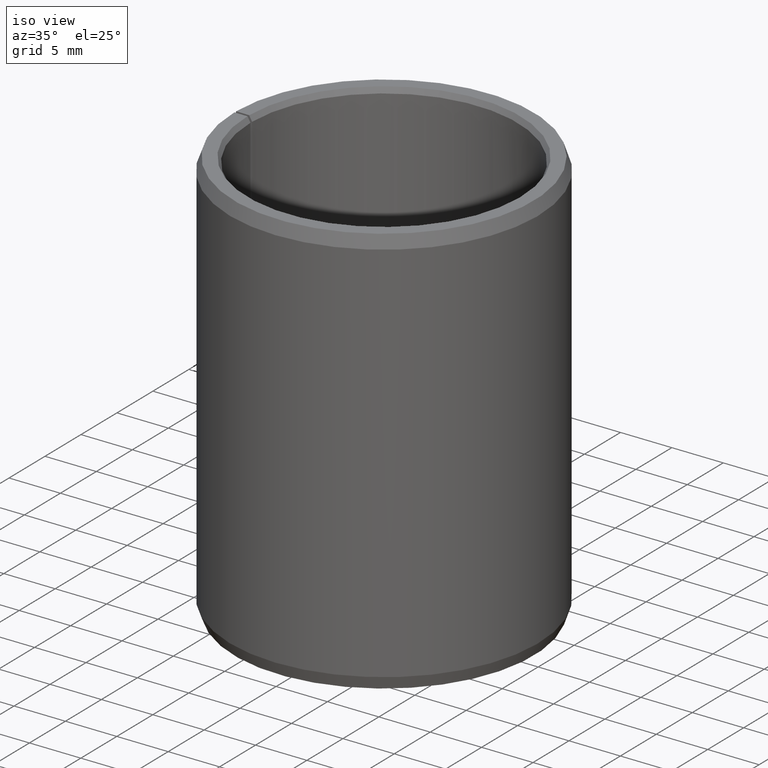
[diagram: clean part render]
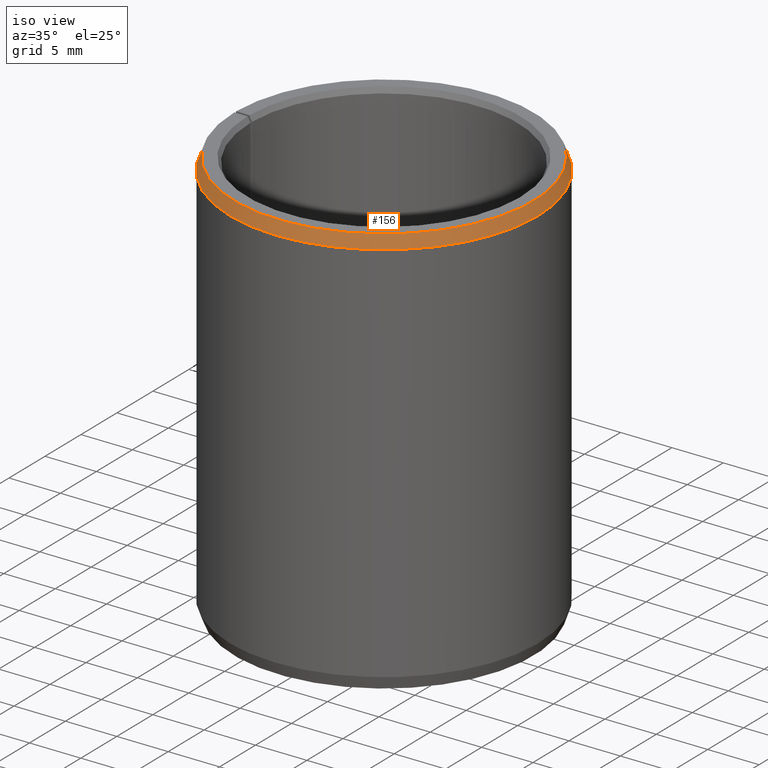
[diagram: same view with one face highlighted and labeled with its STEP entity id]
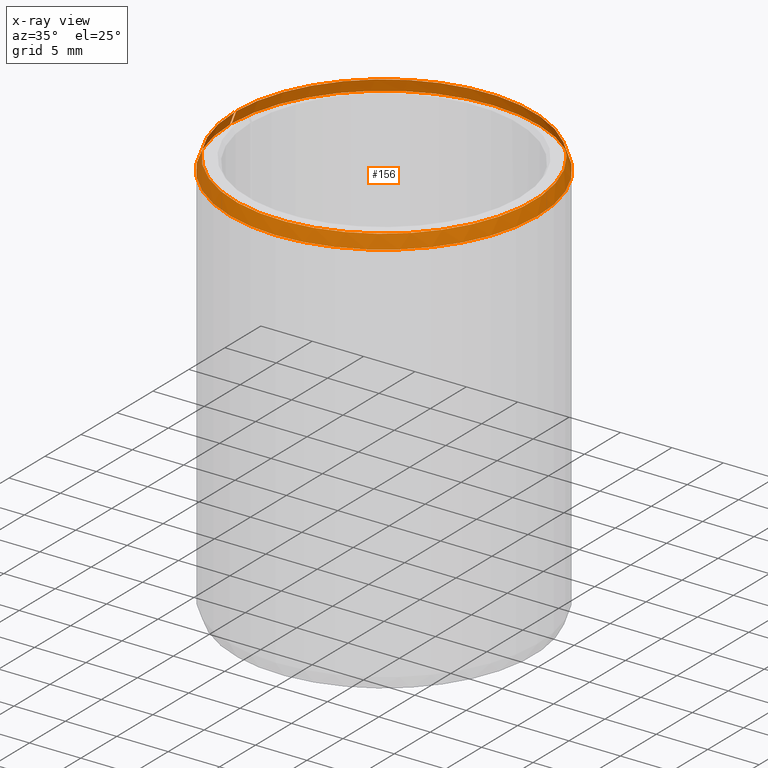
[diagram: x-ray of the same camera — body ghosted, the highlighted face saturated]
A machine part, iso view. The second image highlights one B-rep face of the part: STEP entity #156.
The next image is the same camera in x-ray: the body ghosted, the highlighted face saturated — about 0% of this face is hidden behind the body in this view.
In plain terms, the highlighted conical surface has half-angle 20 deg.
Its self-contained STEP definition (entity closure, byte-faithful):
#156=ADVANCED_FACE('',(#172),#173,.T.);
#172=FACE_OUTER_BOUND('',#198,.T.);
#173=CONICAL_SURFACE('',#199,0.015,0.349065850398866);
#198=EDGE_LOOP('',(#238,#239,#240,#241));
#199=AXIS2_PLACEMENT_3D('',#242,#243,#244);
#238=ORIENTED_EDGE('',*,*,#312,.T.);
#239=ORIENTED_EDGE('',*,*,#313,.F.);
#240=ORIENTED_EDGE('',*,*,#314,.F.);
#241=ORIENTED_EDGE('',*,*,#315,.T.);
#242=CARTESIAN_POINT('',(-8.67361737988404E-018,-6.93889390390723E-018,0.0388));
#243=DIRECTION('',(6.12323399573677E-017,-0.0,-1.0));
#244=DIRECTION('',(-1.0,0.0,-6.12323399573677E-017));
#312=EDGE_CURVE('',#346,#347,#348,.T.);
#313=EDGE_CURVE('',#349,#347,#350,.T.);
#314=EDGE_CURVE('',#351,#349,#352,.T.);
#315=EDGE_CURVE('',#351,#346,#353,.T.);
#346=VERTEX_POINT('',#396);
#347=VERTEX_POINT('',#397);
#348=CIRCLE('',#398,0.0145632357188806);
#349=VERTEX_POINT('',#399);
#350=LINE('',#400,#401);
#351=VERTEX_POINT('',#402);
#352=CIRCLE('',#403,0.015);
#353=LINE('',#404,#405);
#396=CARTESIAN_POINT('',(0.00025416350880786,0.0145610176675419,0.04));
#397=CARTESIAN_POINT('',(-8.67361737988404E-018,0.0145632357188805,0.04));
#398=AXIS2_PLACEMENT_3D('',#574,#575,#576);
#399=CARTESIAN_POINT('',(-8.67361737988404E-018,0.015,0.0388));
#400=CARTESIAN_POINT('',(-8.67361737988404E-018,0.015,0.0388));
#401=VECTOR('',#577,1.0);
#402=CARTESIAN_POINT('',(0.000261786096559245,0.0149977154273459,0.0388));
#403=AXIS2_PLACEMENT_3D('',#578,#579,#580);
#404=CARTESIAN_POINT('',(0.000261786096559245,0.0149977154273459,0.0388));
#405=VECTOR('',#581,1.0);
#574=CARTESIAN_POINT('',(-8.67361737988404E-018,-6.93889390390723E-018,0.04));
#575=DIRECTION('',(6.12323399573677E-017,0.0,-1.0));
#576=DIRECTION('',(-1.0,0.0,-6.12323399573677E-017));
#577=DIRECTION('',(0.0,-0.342020143325669,0.939692620785908));
#578=CARTESIAN_POINT('',(-8.67361737988404E-018,-6.93889390390723E-018,0.0388));
#579=DIRECTION('',(6.12323399573677E-017,0.0,-1.0));
#580=DIRECTION('',(-1.0,0.0,-6.12323399573677E-017));
#581=DIRECTION('',(-0.00596907455105755,-0.341968052001229,0.939692620785908));